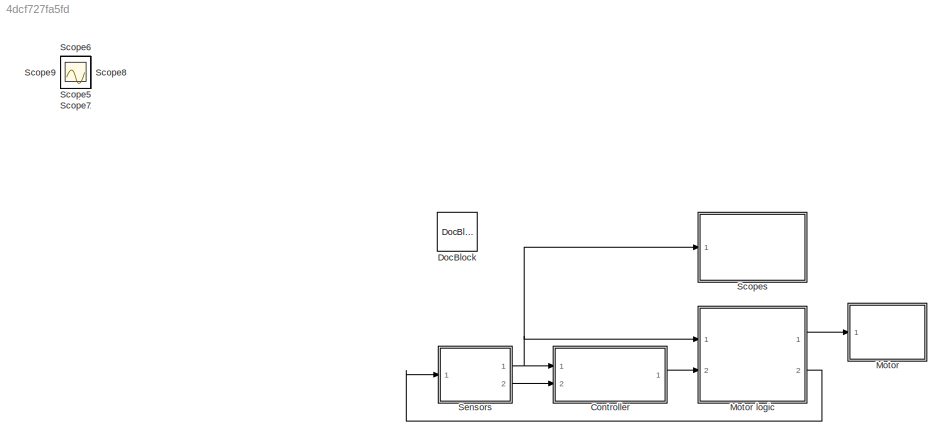
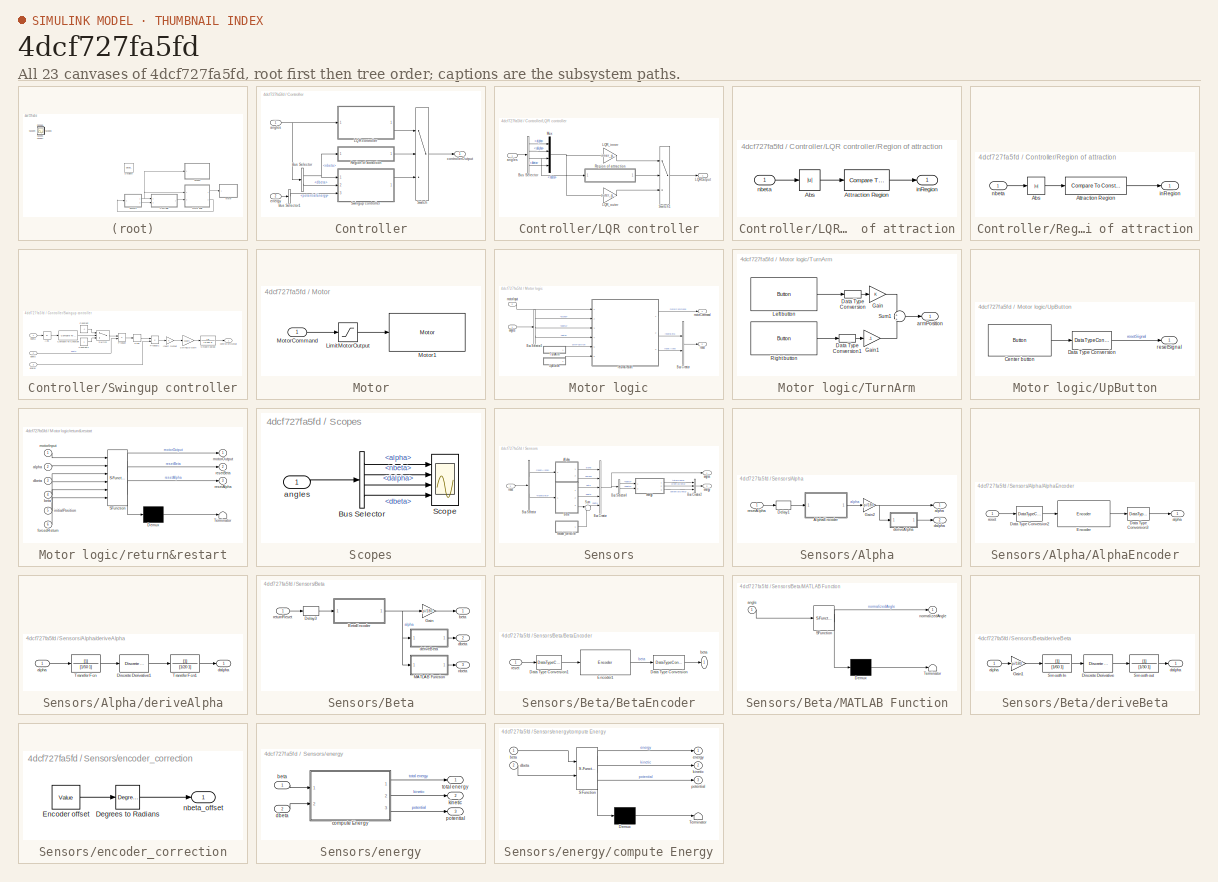
[diagram: thumbnail index - all 23 canvases of the model, root first then tree order]
MODEL slx_4dcf727fa5fd
KIND model
CONFIG AbsTol = auto
CONFIG FixedStep = Ts
CONFIG InitFcn = simMode = get_param(gcs, 'SimulationMode');\nif strcmp(simMode, 'external')\nset_param(gcs,'StopTime', 'Inf');\nelseif strcmp(simMode, 'normal')\nset_param(gcs,'StopTime', '10');\nend\n\n\n
CONFIG MaxStep = auto
CONFIG MinStep = auto
CONFIG PreLoadFcn = RotaryPendulum_PARAM
CONFIG RelTol = 1e-3
CONFIG SampleTimeConstraint = Unconstrained
CONFIG Solver = ode3
CONFIG SolverMode = SingleTasking
CONFIG SolverName = ode3
CONFIG StartTime = 0
CONFIG StopTime = Inf
WORKSPACE source: MAT-file member
WORKSPACE PulseAmplitude = 200
BLOCK [SubSystem] Controller
  Ports = [2, 1]
  RequestExecContextInheritance = off
BLOCK [BusSelector] Controller/Bus Selector
  OutputSignals = nbeta,dbeta
  Ports = [1, 2]
BLOCK [BusSelector] Controller/Bus Selector1
  OutputSignals = potentialEnergy
  Ports = [1, 1]
BLOCK [SubSystem] Controller/LQR controller
  Ports = [1, 1]
  RequestExecContextInheritance = off
BLOCK [BusSelector] Controller/LQR controller/Bus Selector
  OutputSignals = alpha,dalpha,nbeta,dbeta
  Ports = [1, 4]
BLOCK [Outport] Controller/LQR controller/LQROutput
  IconDisplay = Port number
BLOCK [Gain] Controller/LQR controller/LQR_inner
  Gain = inner_gain
  Multiplication = Matrix(K*u)
  OutDataTypeStr = Inherit: Inherit via internal rule
  ParamDataTypeStr = Inherit: Inherit via internal rule
  SaturateOnIntegerOverflow = off
BLOCK [Gain] Controller/LQR controller/LQR_outer
  Gain = outer_gain
  Multiplication = Matrix(K*u)
  OutDataTypeStr = Inherit: Inherit via internal rule
  ParamDataTypeStr = Inherit: Inherit via internal rule
  SaturateOnIntegerOverflow = off
BLOCK [Mux] Controller/LQR controller/Mux
  DisplayOption = bar
  Ports = [4, 1]
BLOCK [SubSystem] Controller/LQR controller/Region of attraction
  Ports = [1, 1]
  RequestExecContextInheritance = off
BLOCK [Abs] Controller/LQR controller/Region of attraction/Abs
  SaturateOnIntegerOverflow = off
BLOCK [Reference] Controller/LQR controller/Region of attraction/Attraction Region  REF=simulink/Logic and Bit
Operations/Compare
To Constant
  OutDataTypeStr = boolean
  Ports = [1, 1]
  SourceBlock = simulink/Logic and Bit\nOperations/Compare\nTo Constant
  SourceType = Compare To Constant
  ZeroCross = on
  const = const
  relop = <=
BLOCK [Outport] Controller/LQR controller/Region of attraction/inRegion
  IconDisplay = Port number
BLOCK [Inport] Controller/LQR controller/Region of attraction/nbeta
  IconDisplay = Port number
BLOCK [Switch] Controller/LQR controller/Switch1
  Criteria = u2 > Threshold
  InputSameDT = off
  SampleTime = Ts
  SaturateOnIntegerOverflow = off
BLOCK [Inport] Controller/LQR controller/angles
  IconDisplay = Port number
BLOCK [SubSystem] Controller/Region of attraction
  Ports = [1, 1]
  RequestExecContextInheritance = off
BLOCK [Abs] Controller/Region of attraction/Abs
  SaturateOnIntegerOverflow = off
BLOCK [Reference] Controller/Region of attraction/Attraction Region  REF=simulink/Logic and Bit
Operations/Compare
To Constant
  OutDataTypeStr = boolean
  Ports = [1, 1]
  SourceBlock = simulink/Logic and Bit\nOperations/Compare\nTo Constant
  SourceType = Compare To Constant
  ZeroCross = on
  const = outer_angle
  relop = <=
BLOCK [Outport] Controller/Region of attraction/inRegion
  IconDisplay = Port number
BLOCK [Inport] Controller/Region of attraction/nbeta
  IconDisplay = Port number
BLOCK [SubSystem] Controller/Swingup controller
  Ports = [3, 1]
  RequestExecContextInheritance = off
  ShowPortLabels = SignalName
  SystemSampleTime = Ts
BLOCK [Abs] Controller/Swingup controller/Abs
  SaturateOnIntegerOverflow = off
BLOCK [Reference] Controller/Swingup controller/Compare To Constant  REF=simulink/Logic and Bit
Operations/Compare
To Constant
  OutDataTypeStr = boolean
  Ports = [1, 1]
  SourceBlock = simulink/Logic and Bit\nOperations/Compare\nTo Constant
  SourceType = Compare To Constant
  ZeroCross = on
  const = pi/2;
  relop = <=
BLOCK [Constant] Controller/Swingup controller/Constant
  Value = -1
BLOCK [Constant] Controller/Swingup controller/Constant1
BLOCK [Gain] Controller/Swingup controller/Invert Output
  OutDataTypeStr = Inherit: Inherit via internal rule
  ParamDataTypeStr = Inherit: Inherit via internal rule
  SaturateOnIntegerOverflow = off
BLOCK [Product] Controller/Swingup controller/Product
  InputSameDT = off
  OutDataTypeStr = Inherit: Inherit via internal rule
  Ports = [2, 1]
  RndMeth = Floor
  SaturateOnIntegerOverflow = off
BLOCK [Product] Controller/Swingup controller/Product1
  InputSameDT = off
  OutDataTypeStr = Inherit: Inherit via internal rule
  Ports = [2, 1]
  RndMeth = Floor
  SaturateOnIntegerOverflow = off
BLOCK [Signum] Controller/Swingup controller/Sign
  SampleTime = Ts
BLOCK [TransferFcn] Controller/Swingup controller/Smooth output
  Denominator = [1/100 1]
BLOCK [Gain] Controller/Swingup controller/SwingUp Gain
  Gain = Gain
  OutDataTypeStr = Inherit: Inherit via internal rule
  ParamDataTypeStr = Inherit: Inherit via internal rule
  SaturateOnIntegerOverflow = off
BLOCK [Switch] Controller/Swingup controller/Switch
  Criteria = u2 > Threshold
  InputSameDT = off
  SaturateOnIntegerOverflow = off
BLOCK [Outport] Controller/Swingup controller/controllerOutput
  IconDisplay = Port number
BLOCK [Inport] Controller/Swingup controller/dbeta
  IconDisplay = Port number
  Port = 2
BLOCK [Inport] Controller/Swingup controller/energy
  IconDisplay = Port number
  Port = 3
BLOCK [Inport] Controller/Swingup controller/nbeta
  IconDisplay = Port number
BLOCK [Switch] Controller/Switch
  Criteria = u2 > Threshold
  InputSameDT = off
  SampleTime = Ts
  SaturateOnIntegerOverflow = off
BLOCK [Inport] Controller/angles
  IconDisplay = Port number
BLOCK [Outport] Controller/controllerOutput
  IconDisplay = Port number
BLOCK [Inport] Controller/energy
  IconDisplay = Port number
  Port = 2
BLOCK [Reference] DocBlock  REF=simulink/Model-Wide
Utilities/DocBlock
  DocumentType = Text
  Ports = []
  SourceBlock = simulink/Model-Wide\nUtilities/DocBlock
  SourceType = DocBlock
  UserDataPersistent = on
BLOCK [SubSystem] Motor
  Ports = [1]
  RequestExecContextInheritance = off
BLOCK [SubSystem] Motor logic
  Ports = [2, 2]
  RequestExecContextInheritance = off
BLOCK [BusCreator] Motor logic/Bus Creator
  DisplayOption = bar
  Inputs = 2
  Ports = [2, 1]
BLOCK [BusSelector] Motor logic/Bus Selector3
  OutputSignals = alpha,dbeta,beta
  Ports = [1, 3]
BLOCK [SubSystem] Motor logic/TurnArm
  Ports = [0, 1]
  RequestExecContextInheritance = off
BLOCK [DataTypeConversion] Motor logic/TurnArm/Data Type Conversion
  OutDataTypeStr = int8
  RndMeth = Floor
  SaturateOnIntegerOverflow = off
BLOCK [DataTypeConversion] Motor logic/TurnArm/Data Type Conversion1
  OutDataTypeStr = int8
  RndMeth = Floor
  SaturateOnIntegerOverflow = off
BLOCK [Gain] Motor logic/TurnArm/Gain
  OutDataTypeStr = int8
  ParamDataTypeStr = Inherit: Inherit via internal rule
  SampleTime = Ts
  SaturateOnIntegerOverflow = off
BLOCK [Gain] Motor logic/TurnArm/Gain1
  Gain = -1
  OutDataTypeStr = int8
  ParamDataTypeStr = Inherit: Inherit via internal rule
  SampleTime = Ts
  SaturateOnIntegerOverflow = off
BLOCK [Reference] Motor logic/TurnArm/Left button  REF=legoev3lib/Button
  Ports = [0, 1]
  SourceBlock = legoev3lib/Button
  SourceType = LEGO MINDSTORMS EV3 Button
  buttonType = Left
  sampleTime = Ts
BLOCK [Reference] Motor logic/TurnArm/Right button  REF=legoev3lib/Button
  Ports = [0, 1]
  SourceBlock = legoev3lib/Button
  SourceType = LEGO MINDSTORMS EV3 Button
  buttonType = Right
  sampleTime = Ts
BLOCK [Sum] Motor logic/TurnArm/Sum1
  IconShape = round
  InputSameDT = off
  Inputs = +|+
  OutDataTypeStr = Inherit: Inherit via internal rule
  Ports = [2, 1]
  SaturateOnIntegerOverflow = off
BLOCK [Outport] Motor logic/TurnArm/armPosition
  IconDisplay = Port number
BLOCK [SubSystem] Motor logic/UpButton
  Ports = [0, 1]
  RequestExecContextInheritance = off
BLOCK [Reference] Motor logic/UpButton/Center button  REF=legoev3lib/Button
  Ports = [0, 1]
  SourceBlock = legoev3lib/Button
  SourceType = LEGO MINDSTORMS EV3 Button
  buttonType = Center
  sampleTime = Ts
BLOCK [DataTypeConversion] Motor logic/UpButton/Data Type Conversion
  OutDataTypeStr = boolean
  RndMeth = Floor
  SampleTime = Ts
  SaturateOnIntegerOverflow = off
BLOCK [Outport] Motor logic/UpButton/resetSignal 
  IconDisplay = Port number
BLOCK [Inport] Motor logic/angles
  IconDisplay = Port number
BLOCK [Outport] Motor logic/motorCommand
  IconDisplay = Port number
BLOCK [Inport] Motor logic/motorInput
  IconDisplay = Port number
  Port = 2
BLOCK [Outport] Motor logic/reset
  IconDisplay = Port number
  Port = 2
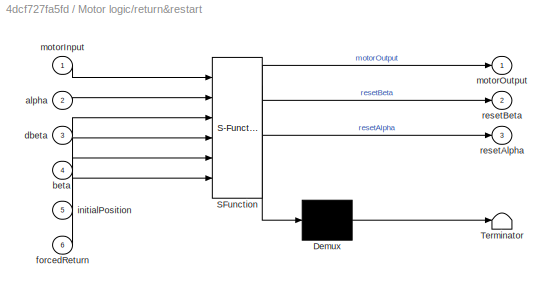
BLOCK [SubSystem] Motor logic/return&restart
  ErrorFcn = Stateflow.Translate.translate
  PermitHierarchicalResolution = ExplicitOnly
  Ports = [6, 3]
  RequestExecContextInheritance = off
  SFBlockType = Chart
  TreatAsAtomicUnit = on
BLOCK [Demux] Motor logic/return&restart/ Demux 
  Outputs = 1
  Ports = [1, 1]
BLOCK [S-Function] Motor logic/return&restart/ SFunction 
  EnableBusSupport = on
  FunctionName = sf_sfun
  Parameters = outOfBounds
  PortCounts = [6 4]
  Ports = [6, 4]
  Tag = Stateflow S-Function RotaryPendulum_EV3_SwingUp 1
BLOCK [Terminator] Motor logic/return&restart/ Terminator 
BLOCK [Inport] Motor logic/return&restart/alpha
  IconDisplay = Port number
  Port = 2
BLOCK [Inport] Motor logic/return&restart/beta
  IconDisplay = Port number
  Port = 4
BLOCK [Inport] Motor logic/return&restart/dbeta
  IconDisplay = Port number
  Port = 3
BLOCK [Inport] Motor logic/return&restart/forcedReturn
  IconDisplay = Port number
  Port = 6
BLOCK [Inport] Motor logic/return&restart/initialPosition
  IconDisplay = Port number
  Port = 5
BLOCK [Inport] Motor logic/return&restart/motorInput
  IconDisplay = Port number
BLOCK [Outport] Motor logic/return&restart/motorOutput
  IconDisplay = Port number
BLOCK [Outport] Motor logic/return&restart/resetAlpha
  IconDisplay = Port number
  Port = 3
BLOCK [Outport] Motor logic/return&restart/resetBeta
  IconDisplay = Port number
  Port = 2
BLOCK [Saturate] Motor/LimitMotorOutput
  InputPortMap = u0
  LowerLimit = -100
  Ports = [1, 1]
  UpperLimit = 100
BLOCK [Reference] Motor/Motor1  REF=legoev3lib/Motor
  Ports = [1]
  SourceBlock = legoev3lib/Motor
  SourceType = LEGO MINDSTORMS EV3 Motor
  sportNumber = C
  sstopAction = Brake
BLOCK [Inport] Motor/MotorCommand
  IconDisplay = Port number
BLOCK [Scope] Scope
  DataFormat = StructureWithTime
  Floating = off
  IOType = viewer
  NumInputPorts = 1
  Ports = []
  SampleTime = 0
BLOCK [Scope] Scope1
  DataFormat = StructureWithTime
  Floating = off
  IOType = viewer
  NumInputPorts = 1
  Ports = []
  SampleTime = 0
  SaveName = ScopeData1
  YMax = 3.14159
  YMin = 3.14159
BLOCK [Scope] Scope2
  DataFormat = StructureWithTime
  Floating = off
  IOType = viewer
  NumInputPorts = 1
  Ports = []
  SampleTime = 0
  SaveName = ScopeData2
BLOCK [Scope] Scope3
  DataFormat = StructureWithTime
  Floating = off
  IOType = viewer
  NumInputPorts = 1
  Ports = []
  SampleTime = 0
  SaveName = ScopeData3
  YMax = 3.14159
  YMin = 3.14159
BLOCK [Scope] Scope4
  DataFormat = StructureWithTime
  Floating = off
  IOType = viewer
  NumInputPorts = 1
  Ports = []
  SampleTime = 0
  SaveName = ScopeData4
BLOCK [Scope] Scope5
  DataFormat = StructureWithTime
  Floating = off
  IOType = viewer
  NumInputPorts = 1
  Ports = []
  SampleTime = 0
  SaveName = ScopeData5
  YMax = 0.035
  YMin = 0
BLOCK [Scope] Scope6
  DataFormat = StructureWithTime
  Floating = off
  IOType = viewer
  NumInputPorts = 1
  Ports = []
  SampleTime = 0
  SaveName = ScopeData6
BLOCK [Scope] Scope7
  DataFormat = StructureWithTime
  Floating = off
  IOType = viewer
  NumInputPorts = 1
  Ports = []
  SampleTime = 0
  SaveName = ScopeData7
BLOCK [Scope] Scope8
  DataFormat = StructureWithTime
  Floating = off
  IOType = viewer
  NumInputPorts = 1
  Ports = []
  SampleTime = 0
  SaveName = ScopeData8
BLOCK [Scope] Scope9
  DataFormat = StructureWithTime
  Floating = off
  IOType = viewer
  NumInputPorts = 1
  Ports = []
  SampleTime = 0
  SaveName = ScopeData9
BLOCK [SubSystem] Scopes
  Ports = [1]
  RequestExecContextInheritance = off
BLOCK [BusSelector] Scopes/Bus Selector
  OutputSignals = alpha,nbeta,dalpha,dbeta
  Ports = [1, 4]
BLOCK [Scope] Scopes/Scope
  Floating = off
  NumInputPorts = 4
  Ports = [4]
  SaveName = ScopeData10
  TimeRange = 10
  YMax = 0~0.035~10~17.5
  YMin = -0.475~-0.02~-3~-12.5
BLOCK [Inport] Scopes/angles
  IconDisplay = Port number
BLOCK [SubSystem] Sensors
  Ports = [1, 2]
  RequestExecContextInheritance = off
BLOCK [SubSystem] Sensors/Alpha
  Ports = [1, 2]
  RequestExecContextInheritance = off
BLOCK [SubSystem] Sensors/Alpha/AlphaEncoder
  Ports = [1, 1]
  RequestExecContextInheritance = off
BLOCK [DataTypeConversion] Sensors/Alpha/AlphaEncoder/Data Type Conversion2
  OutDataTypeStr = int8
  OutMin = 0
  RndMeth = Floor
  SaturateOnIntegerOverflow = off
BLOCK [DataTypeConversion] Sensors/Alpha/AlphaEncoder/Data Type Conversion3
  OutDataTypeStr = double
  RndMeth = Floor
  SaturateOnIntegerOverflow = off
BLOCK [Reference] Sensors/Alpha/AlphaEncoder/Encoder  REF=legoev3lib/Encoder
  Ports = [1, 1]
  SourceBlock = legoev3lib/Encoder
  SourceType = LEGO MINDSTORMS EV3 Encoder
  opMode = Reset by external signal
  portNumber = C
  sampleTime = Ts
BLOCK [Outport] Sensors/Alpha/AlphaEncoder/alpha 
  IconDisplay = Port number
BLOCK [Inport] Sensors/Alpha/AlphaEncoder/reset
  IconDisplay = Port number
BLOCK [Delay] Sensors/Alpha/Delay1
  DelayLength = 1
  InputPortMap = u0
  Ports = [1, 1]
BLOCK [Gain] Sensors/Alpha/Gain2
  Gain = -pi/180
  OutDataTypeStr = Inherit: Inherit via internal rule
  ParamDataTypeStr = Inherit: Inherit via internal rule
  SaturateOnIntegerOverflow = off
BLOCK [Outport] Sensors/Alpha/alpha
  IconDisplay = Port number
BLOCK [Outport] Sensors/Alpha/dalpha
  IconDisplay = Port number
  Port = 2
BLOCK [SubSystem] Sensors/Alpha/deriveAlpha
  Ports = [1, 1]
  RequestExecContextInheritance = off
BLOCK [Reference] Sensors/Alpha/deriveAlpha/Discrete Derivative1  REF=simulink/Discrete/Discrete Derivative
  DoSatur = off
  ICPrevScaledInput = 0.0
  InputProcessing = Inherited
  LockScale = off
  OutDataType = fixdt(1, 16)
  OutDataTypeStr = Inherit: Inherit via internal rule
  OutMax = []
  OutMin = []
  OutScaling = 2^-10
  OutputDataTypeScalingMode = Inherit via internal rule
  Ports = [1, 1]
  RndMeth = Floor
  SourceBlock = simulink/Discrete/Discrete Derivative
  SourceType = Discrete Derivative
  gainval = 1.0
BLOCK [TransferFcn] Sensors/Alpha/deriveAlpha/Transfer Fcn
  Denominator = [1/50 1]
BLOCK [TransferFcn] Sensors/Alpha/deriveAlpha/Transfer Fcn1
  Denominator = [1/20 1]
BLOCK [Inport] Sensors/Alpha/deriveAlpha/alpha
  IconDisplay = Port number
BLOCK [Outport] Sensors/Alpha/deriveAlpha/dalpha
  IconDisplay = Port number
BLOCK [Inport] Sensors/Alpha/resetAlpha
  IconDisplay = Port number
BLOCK [SubSystem] Sensors/Beta
  Ports = [1, 3]
  RequestExecContextInheritance = off
BLOCK [SubSystem] Sensors/Beta/BetaEncoder
  Ports = [1, 1]
  RequestExecContextInheritance = off
BLOCK [DataTypeConversion] Sensors/Beta/BetaEncoder/Data Type Conversion
  OutDataTypeStr = double
  RndMeth = Floor
  SaturateOnIntegerOverflow = off
BLOCK [DataTypeConversion] Sensors/Beta/BetaEncoder/Data Type Conversion1
  OutDataTypeStr = int8
  OutMin = 0
  RndMeth = Floor
  SaturateOnIntegerOverflow = off
BLOCK [Reference] Sensors/Beta/BetaEncoder/Encoder1  REF=legoev3lib/Encoder
  Ports = [1, 1]
  SourceBlock = legoev3lib/Encoder
  SourceType = LEGO MINDSTORMS EV3 Encoder
  opMode = Reset by external signal
  portNumber = B
  sampleTime = Ts
BLOCK [Outport] Sensors/Beta/BetaEncoder/beta 
  IconDisplay = Port number
BLOCK [Inport] Sensors/Beta/BetaEncoder/reset
  IconDisplay = Port number
BLOCK [Delay] Sensors/Beta/Delay3
  DelayLength = 1
  InitialCondition = 0
  InputPortMap = u0
  Ports = [1, 1]
BLOCK [Gain] Sensors/Beta/Gain
  Gain = pi/180
  OutDataTypeStr = Inherit: Inherit via internal rule
  ParamDataTypeStr = Inherit: Inherit via internal rule
  SaturateOnIntegerOverflow = off
BLOCK [SubSystem] Sensors/Beta/MATLAB Function
  ErrorFcn = Stateflow.Translate.translate
  PermitHierarchicalResolution = ExplicitOnly
  Ports = [1, 1]
  RequestExecContextInheritance = off
  SFBlockType = MATLAB Function
  TreatAsAtomicUnit = on
BLOCK [Demux] Sensors/Beta/MATLAB Function/ Demux 
  Outputs = 1
  Ports = [1, 1]
BLOCK [S-Function] Sensors/Beta/MATLAB Function/ SFunction 
  EnableBusSupport = on
  FunctionName = sf_sfun
  PortCounts = [1 2]
  Ports = [1, 2]
  Tag = Stateflow S-Function RotaryPendulum_EV3_SwingUp 4
BLOCK [Terminator] Sensors/Beta/MATLAB Function/ Terminator 
BLOCK [Inport] Sensors/Beta/MATLAB Function/angle
  IconDisplay = Port number
BLOCK [Outport] Sensors/Beta/MATLAB Function/normalizedAngle
  IconDisplay = Port number
BLOCK [Outport] Sensors/Beta/beta
  IconDisplay = Port number
BLOCK [Outport] Sensors/Beta/dbeta
  IconDisplay = Port number
  Port = 2
BLOCK [SubSystem] Sensors/Beta/deriveBeta
  Ports = [1, 1]
  RequestExecContextInheritance = off
BLOCK [Reference] Sensors/Beta/deriveBeta/Discrete Derivative  REF=simulink/Discrete/Discrete Derivative
  DoSatur = off
  ICPrevScaledInput = 0.0
  InputProcessing = Inherited
  LockScale = off
  OutDataType = fixdt(1, 16)
  OutDataTypeStr = Inherit: Inherit via internal rule
  OutMax = []
  OutMin = []
  OutScaling = 2^-10
  OutputDataTypeScalingMode = Inherit via internal rule
  Ports = [1, 1]
  RndMeth = Floor
  SourceBlock = simulink/Discrete/Discrete Derivative
  SourceType = Discrete Derivative
  gainval = 1.0
BLOCK [Gain] Sensors/Beta/deriveBeta/Gain1
  Gain = pi/180
  OutDataTypeStr = Inherit: Inherit via internal rule
  ParamDataTypeStr = Inherit: Inherit via internal rule
  SaturateOnIntegerOverflow = off
BLOCK [TransferFcn] Sensors/Beta/deriveBeta/Smooth In
  Denominator = [1/60 1]
BLOCK [TransferFcn] Sensors/Beta/deriveBeta/Smooth out
  Denominator = [1/30 1]
BLOCK [Inport] Sensors/Beta/deriveBeta/alpha
  IconDisplay = Port number
BLOCK [Outport] Sensors/Beta/deriveBeta/dalpha
  IconDisplay = Port number
BLOCK [Outport] Sensors/Beta/nbeta
  IconDisplay = Port number
  Port = 3
BLOCK [Inport] Sensors/Beta/returnReset
  IconDisplay = Port number
BLOCK [BusCreator] Sensors/Bus Creator
  DisplayOption = bar
  Inputs = 5
  Ports = [5, 1]
BLOCK [BusCreator] Sensors/Bus Creator2
  DisplayOption = bar
  Inputs = 3
  Ports = [3, 1]
BLOCK [BusSelector] Sensors/Bus Selector
  OutputSignals = resetAlpha,resetBeta
  Ports = [1, 2]
BLOCK [BusSelector] Sensors/Bus Selector4
  OutputSignals = nbeta,dbeta
  Ports = [1, 2]
BLOCK [Sum] Sensors/Sum
  IconShape = round
  InputSameDT = off
  Inputs = |++
  OutDataTypeStr = Inherit: Inherit via internal rule
  Ports = [2, 1]
  SaturateOnIntegerOverflow = off
BLOCK [Outport] Sensors/angles
  IconDisplay = Port number
BLOCK [SubSystem] Sensors/encoder_correction
  Ports = [0, 1]
  RequestExecContextInheritance = off
BLOCK [Reference] Sensors/encoder_correction/Degrees to Radians  REF=simulink_extras/Transformations/Degrees to
Radians
  Ports = [1, 1]
  SourceBlock = simulink_extras/Transformations/Degrees to\nRadians
  SourceType = DegreesToRadians
BLOCK [Constant] Sensors/encoder_correction/Encoder offset
  Value = Value
BLOCK [Outport] Sensors/encoder_correction/nbeta_offset
  IconDisplay = Port number
BLOCK [SubSystem] Sensors/energy
  Ports = [2, 3]
  RequestExecContextInheritance = off
BLOCK [Outport] Sensors/energy 
  IconDisplay = Port number
  Port = 2
BLOCK [Inport] Sensors/energy/beta
  IconDisplay = Port number
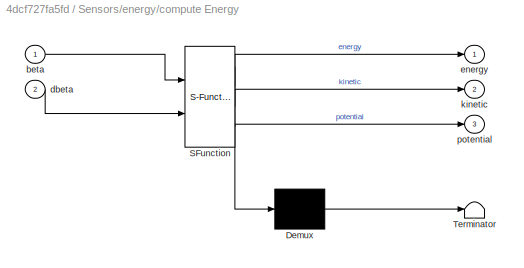
BLOCK [SubSystem] Sensors/energy/compute Energy
  ErrorFcn = Stateflow.Translate.translate
  PermitHierarchicalResolution = ExplicitOnly
  Ports = [2, 3]
  RequestExecContextInheritance = off
  SFBlockType = MATLAB Function
  TreatAsAtomicUnit = on
BLOCK [Demux] Sensors/energy/compute Energy/ Demux 
  Outputs = 1
  Ports = [1, 1]
BLOCK [S-Function] Sensors/energy/compute Energy/ SFunction 
  EnableBusSupport = on
  FunctionName = sf_sfun
  Parameters = g,l,m
  PortCounts = [2 4]
  Ports = [2, 4]
  Tag = Stateflow S-Function RotaryPendulum_EV3_SwingUp 3
BLOCK [Terminator] Sensors/energy/compute Energy/ Terminator 
BLOCK [Inport] Sensors/energy/compute Energy/beta
  IconDisplay = Port number
BLOCK [Inport] Sensors/energy/compute Energy/dbeta
  IconDisplay = Port number
  Port = 2
BLOCK [Outport] Sensors/energy/compute Energy/energy
  IconDisplay = Port number
BLOCK [Outport] Sensors/energy/compute Energy/kinetic
  IconDisplay = Port number
  Port = 2
BLOCK [Outport] Sensors/energy/compute Energy/potential
  IconDisplay = Port number
  Port = 3
BLOCK [Inport] Sensors/energy/dbeta
  IconDisplay = Port number
  Port = 2
BLOCK [Outport] Sensors/energy/kinetic
  IconDisplay = Port number
  Port = 2
BLOCK [Outport] Sensors/energy/potential
  IconDisplay = Port number
  Port = 3
BLOCK [Outport] Sensors/energy/total energy
  IconDisplay = Port number
BLOCK [Inport] Sensors/reset
  IconDisplay = Port number
LINE Controller/Bus Selector1:1 -> Controller/Swingup controller:3
NET Controller/Bus Selector:1 -> Controller/Region of attraction:1, Controller/Swingup controller:1
LINE Controller/Bus Selector:2 -> Controller/Swingup controller:2
LINE Controller/LQR controller/Bus Selector:1 -> Controller/LQR controller/Mux:1
LINE Controller/LQR controller/Bus Selector:2 -> Controller/LQR controller/Mux:2
NET Controller/LQR controller/Bus Selector:3 -> Controller/LQR controller/Mux:3, Controller/LQR controller/Region of attraction:1
LINE Controller/LQR controller/Bus Selector:4 -> Controller/LQR controller/Mux:4
LINE Controller/LQR controller/LQR_inner:1 -> Controller/LQR controller/Switch1:1
LINE Controller/LQR controller/LQR_outer:1 -> Controller/LQR controller/Switch1:3
NET Controller/LQR controller/Mux:1 -> Controller/LQR controller/LQR_inner:1, Controller/LQR controller/LQR_outer:1
LINE Controller/LQR controller/Region of attraction/Abs:1 -> Controller/LQR controller/Region of attraction/Attraction Region:1
LINE Controller/LQR controller/Region of attraction/Attraction Region:1 -> Controller/LQR controller/Region of attraction/inRegion:1
LINE Controller/LQR controller/Region of attraction/nbeta:1 -> Controller/LQR controller/Region of attraction/Abs:1
LINE Controller/LQR controller/Region of attraction:1 -> Controller/LQR controller/Switch1:2
LINE Controller/LQR controller/Switch1:1 -> Controller/LQR controller/LQROutput:1
LINE Controller/LQR controller/angles:1 -> Controller/LQR controller/Bus Selector:1
LINE Controller/LQR controller:1 -> Controller/Switch:1
LINE Controller/Region of attraction/Abs:1 -> Controller/Region of attraction/Attraction Region:1
LINE Controller/Region of attraction/Attraction Region:1 -> Controller/Region of attraction/inRegion:1
LINE Controller/Region of attraction/nbeta:1 -> Controller/Region of attraction/Abs:1
LINE Controller/Region of attraction:1 -> Controller/Switch:2
LINE Controller/Swingup controller/Abs:1 -> Controller/Swingup controller/Compare To Constant:1
LINE Controller/Swingup controller/Compare To Constant:1 -> Controller/Swingup controller/Switch:2
LINE Controller/Swingup controller/Constant1:1 -> Controller/Swingup controller/Switch:3
LINE Controller/Swingup controller/Constant:1 -> Controller/Swingup controller/Switch:1
LINE Controller/Swingup controller/Invert Output:1 -> Controller/Swingup controller/SwingUp Gain:1
LINE Controller/Swingup controller/Product1:1 -> Controller/Swingup controller/Invert Output:1
LINE Controller/Swingup controller/Product:1 -> Controller/Swingup controller/Sign:1
LINE Controller/Swingup controller/Sign:1 -> Controller/Swingup controller/Product1:1
LINE Controller/Swingup controller/Smooth output:1 -> Controller/Swingup controller/controllerOutput:1
LINE Controller/Swingup controller/SwingUp Gain:1 -> Controller/Swingup controller/Smooth output:1
LINE Controller/Swingup controller/Switch:1 -> Controller/Swingup controller/Product:1
LINE Controller/Swingup controller/dbeta:1 -> Controller/Swingup controller/Product:2
LINE Controller/Swingup controller/energy:1 -> Controller/Swingup controller/Product1:2
LINE Controller/Swingup controller/nbeta:1 -> Controller/Swingup controller/Abs:1
LINE Controller/Swingup controller:1 -> Controller/Switch:3
LINE Controller/Switch:1 -> Controller/controllerOutput:1
NET Controller/angles:1 -> Controller/Bus Selector:1, Controller/LQR controller:1
LINE Controller/energy:1 -> Controller/Bus Selector1:1
LINE Controller:1 -> Motor logic:2
LINE Motor logic/Bus Creator:1 -> Motor logic/reset:1
LINE Motor logic/Bus Selector3:1 -> Motor logic/return&restart:2
LINE Motor logic/Bus Selector3:2 -> Motor logic/return&restart:3
LINE Motor logic/Bus Selector3:3 -> Motor logic/return&restart:4
LINE Motor logic/TurnArm/Data Type Conversion1:1 -> Motor logic/TurnArm/Gain1:1
LINE Motor logic/TurnArm/Data Type Conversion:1 -> Motor logic/TurnArm/Gain:1
LINE Motor logic/TurnArm/Gain1:1 -> Motor logic/TurnArm/Sum1:2
LINE Motor logic/TurnArm/Gain:1 -> Motor logic/TurnArm/Sum1:1
LINE Motor logic/TurnArm/Left button:1 -> Motor logic/TurnArm/Data Type Conversion:1
LINE Motor logic/TurnArm/Right button:1 -> Motor logic/TurnArm/Data Type Conversion1:1
LINE Motor logic/TurnArm/Sum1:1 -> Motor logic/TurnArm/armPosition:1
LINE Motor logic/TurnArm:1 -> Motor logic/return&restart:5
LINE Motor logic/UpButton/Center button:1 -> Motor logic/UpButton/Data Type Conversion:1
LINE Motor logic/UpButton/Data Type Conversion:1 -> Motor logic/UpButton/resetSignal :1
LINE Motor logic/UpButton:1 -> Motor logic/return&restart:6
LINE Motor logic/angles:1 -> Motor logic/Bus Selector3:1
LINE Motor logic/motorInput:1 -> Motor logic/return&restart:1
LINE Motor logic/return&restart:1 -> Motor logic/motorCommand:1
LINE Motor logic/return&restart:2 -> Motor logic/Bus Creator:1
LINE Motor logic/return&restart:3 -> Motor logic/Bus Creator:2
LINE Motor logic:1 -> Motor:1
LINE Motor logic:2 -> Sensors:1
LINE Motor/LimitMotorOutput:1 -> Motor/Motor1:1
LINE Motor/MotorCommand:1 -> Motor/LimitMotorOutput:1
LINE Scopes/Bus Selector:1 -> Scopes/Scope:1
LINE Scopes/Bus Selector:2 -> Scopes/Scope:2
LINE Scopes/Bus Selector:3 -> Scopes/Scope:3
LINE Scopes/Bus Selector:4 -> Scopes/Scope:4
LINE Scopes/angles:1 -> Scopes/Bus Selector:1
LINE Sensors/Alpha/AlphaEncoder/Data Type Conversion2:1 -> Sensors/Alpha/AlphaEncoder/Encoder:1
LINE Sensors/Alpha/AlphaEncoder/Data Type Conversion3:1 -> Sensors/Alpha/AlphaEncoder/alpha :1
LINE Sensors/Alpha/AlphaEncoder/Encoder:1 -> Sensors/Alpha/AlphaEncoder/Data Type Conversion3:1
LINE Sensors/Alpha/AlphaEncoder/reset:1 -> Sensors/Alpha/AlphaEncoder/Data Type Conversion2:1
LINE Sensors/Alpha/AlphaEncoder:1 -> Sensors/Alpha/Gain2:1
LINE Sensors/Alpha/Delay1:1 -> Sensors/Alpha/AlphaEncoder:1
NET Sensors/Alpha/Gain2:1 -> Sensors/Alpha/alpha:1, Sensors/Alpha/deriveAlpha:1
LINE Sensors/Alpha/deriveAlpha/Discrete Derivative1:1 -> Sensors/Alpha/deriveAlpha/Transfer Fcn1:1
LINE Sensors/Alpha/deriveAlpha/Transfer Fcn1:1 -> Sensors/Alpha/deriveAlpha/dalpha:1
LINE Sensors/Alpha/deriveAlpha/Transfer Fcn:1 -> Sensors/Alpha/deriveAlpha/Discrete Derivative1:1
LINE Sensors/Alpha/deriveAlpha/alpha:1 -> Sensors/Alpha/deriveAlpha/Transfer Fcn:1
LINE Sensors/Alpha/deriveAlpha:1 -> Sensors/Alpha/dalpha:1
LINE Sensors/Alpha/resetAlpha:1 -> Sensors/Alpha/Delay1:1
LINE Sensors/Alpha:1 -> Sensors/Bus Creator:1
LINE Sensors/Alpha:2 -> Sensors/Bus Creator:2
LINE Sensors/Beta/BetaEncoder/Data Type Conversion1:1 -> Sensors/Beta/BetaEncoder/Encoder1:1
LINE Sensors/Beta/BetaEncoder/Data Type Conversion:1 -> Sensors/Beta/BetaEncoder/beta :1
LINE Sensors/Beta/BetaEncoder/Encoder1:1 -> Sensors/Beta/BetaEncoder/Data Type Conversion:1
LINE Sensors/Beta/BetaEncoder/reset:1 -> Sensors/Beta/BetaEncoder/Data Type Conversion1:1
NET Sensors/Beta/BetaEncoder:1 -> Sensors/Beta/Gain:1, Sensors/Beta/MATLAB Function:1, Sensors/Beta/deriveBeta:1
LINE Sensors/Beta/Delay3:1 -> Sensors/Beta/BetaEncoder:1
LINE Sensors/Beta/Gain:1 -> Sensors/Beta/beta:1
LINE Sensors/Beta/MATLAB Function:1 -> Sensors/Beta/nbeta:1
LINE Sensors/Beta/deriveBeta/Discrete Derivative:1 -> Sensors/Beta/deriveBeta/Smooth out:1
LINE Sensors/Beta/deriveBeta/Gain1:1 -> Sensors/Beta/deriveBeta/Smooth In:1
LINE Sensors/Beta/deriveBeta/Smooth In:1 -> Sensors/Beta/deriveBeta/Discrete Derivative:1
LINE Sensors/Beta/deriveBeta/Smooth out:1 -> Sensors/Beta/deriveBeta/dalpha:1
LINE Sensors/Beta/deriveBeta/alpha:1 -> Sensors/Beta/deriveBeta/Gain1:1
LINE Sensors/Beta/deriveBeta:1 -> Sensors/Beta/dbeta:1
LINE Sensors/Beta/returnReset:1 -> Sensors/Beta/Delay3:1
LINE Sensors/Beta:1 -> Sensors/Bus Creator:3
LINE Sensors/Beta:2 -> Sensors/Bus Creator:4
LINE Sensors/Beta:3 -> Sensors/Sum:1
LINE Sensors/Bus Creator2:1 -> Sensors/energy :1
NET Sensors/Bus Creator:1 -> Sensors/Bus Selector4:1, Sensors/angles:1
LINE Sensors/Bus Selector4:1 -> Sensors/energy:1
LINE Sensors/Bus Selector4:2 -> Sensors/energy:2
LINE Sensors/Bus Selector:1 -> Sensors/Alpha:1
LINE Sensors/Bus Selector:2 -> Sensors/Beta:1
LINE Sensors/Sum:1 -> Sensors/Bus Creator:5
LINE Sensors/encoder_correction/Degrees to Radians:1 -> Sensors/encoder_correction/nbeta_offset:1
LINE Sensors/encoder_correction/Encoder offset:1 -> Sensors/encoder_correction/Degrees to Radians:1
LINE Sensors/encoder_correction:1 -> Sensors/Sum:2
LINE Sensors/energy/beta:1 -> Sensors/energy/compute Energy:1
LINE Sensors/energy/compute Energy:1 -> Sensors/energy/total energy:1
LINE Sensors/energy/compute Energy:2 -> Sensors/energy/kinetic:1
LINE Sensors/energy/compute Energy:3 -> Sensors/energy/potential:1
LINE Sensors/energy/dbeta:1 -> Sensors/energy/compute Energy:2
LINE Sensors/energy:1 -> Sensors/Bus Creator2:1
LINE Sensors/energy:2 -> Sensors/Bus Creator2:2
LINE Sensors/energy:3 -> Sensors/Bus Creator2:3
LINE Sensors/reset:1 -> Sensors/Bus Selector:1
NET Sensors:1 -> Controller:1, Motor logic:1, Scopes:1
LINE Sensors:2 -> Controller:2
note: NET lines group one-source signal fan-out (src -> all destinations, sorted); 1:1 wires keep LINE
CHART Motor logic/return&restart states=6 transitions=12
  STATE_LABEL 'normalPosition'
  STATE_LABEL 'NormalMode\ndu:motorOutput = motorInput;\n'
  STATE_LABEL 'Start\nmotorOutput = amplitude * sin(2*pi*frequency*time);\nresetBeta = 0;'
  STATE_LABEL 'ReturnToInitialPosition\nen: resetAlpha = 0;\ndu: motorOutput = - (alpha)/abs(alpha)*returnSpeed;\nexit: motorOutput = 0;'
  STATE_LABEL 'Stabilize\nexit: resetBeta = 1;'
  STATE_LABEL '[time > startDuration]'
  STATE_LABEL '[abs(alpha) > outOfBounds*pi/180 || forcedReturn || abs(beta) > 2*pi]'
  STATE_LABEL 'after(0.05,sec){time+=0.05;}'
  STATE_LABEL '[counter > 20]{time = 0;}'
  STATE_LABEL '[abs(alpha) < threshold_alpha]{counter = 0;}'
  STATE_LABEL 'after(0.1,sec)[abs(dbeta) < threshold_beta]{counter++;}'
  STATE_LABEL 'NormalMode\ndu:motorOutput = motorInput;\n'
  STATE_LABEL 'Start\nmotorOutput = amplitude * sin(2*pi*frequency*time);\nresetBeta = 0;'
  STATE_LABEL 'ReturnToInitialPosition\nen: resetAlpha = 0;\ndu: motorOutput = - (alpha)/abs(alpha)*returnSpeed;\nexit: motorOutput = 0;'
  STATE_LABEL 'Stabilize\nexit: resetBeta = 1;'
  STATE_LABEL 'changeInitialPos\nex: resetAlpha =1;\n'
CHART Sensors/energy/compute Energy states=1 transitions=1
  STATE_LABEL 'eML_blk_kernel()'
  STATE_LABEL 'SCRIPT:\nfunction [energy, kinetic, potential] = computeEnergy(beta,dbeta,l,m,g)\n%#codegen \n\nkinetic   = 1/2*1/3*m*l^2*dbeta^2/(m*g*l);\npotential = m*g*l*(cos(beta) - 1)/(m*g*l);\nenergy    = kinetic + potential;\n'
CHART Sensors/Beta/MATLAB Function states=1 transitions=1
  STATE_LABEL 'eML_blk_kernel()'
  STATE_LABEL 'SCRIPT:\nfunction normalizedAngle = fcn(angle)\n%#codegen\nif angle == 0;\n    normalizedAngle = pi;\nelse\n    sgn = sign(angle);\n    angle = sgn*mod(abs(angle),360);\n    normalizedAngle = sgn*(pi - abs(angle)*pi/180);\nend\n'
